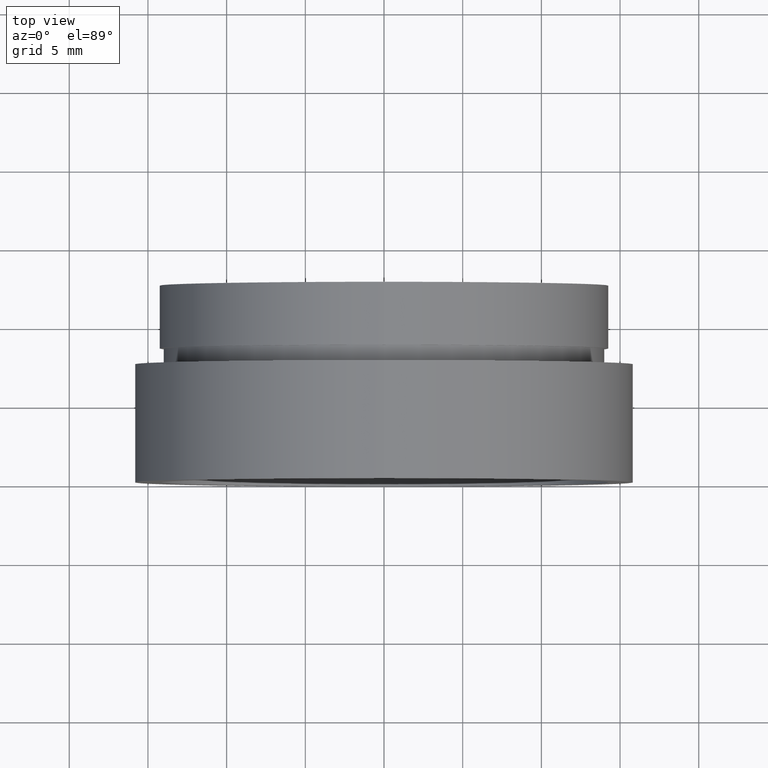
[diagram: clean part render]
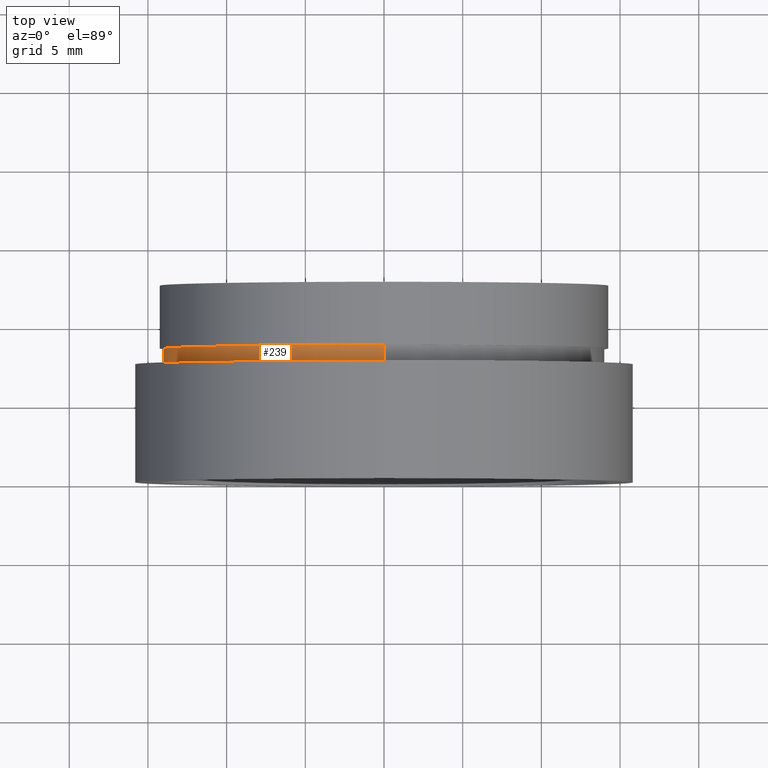
[diagram: same view with one face highlighted and labeled with its STEP entity id]
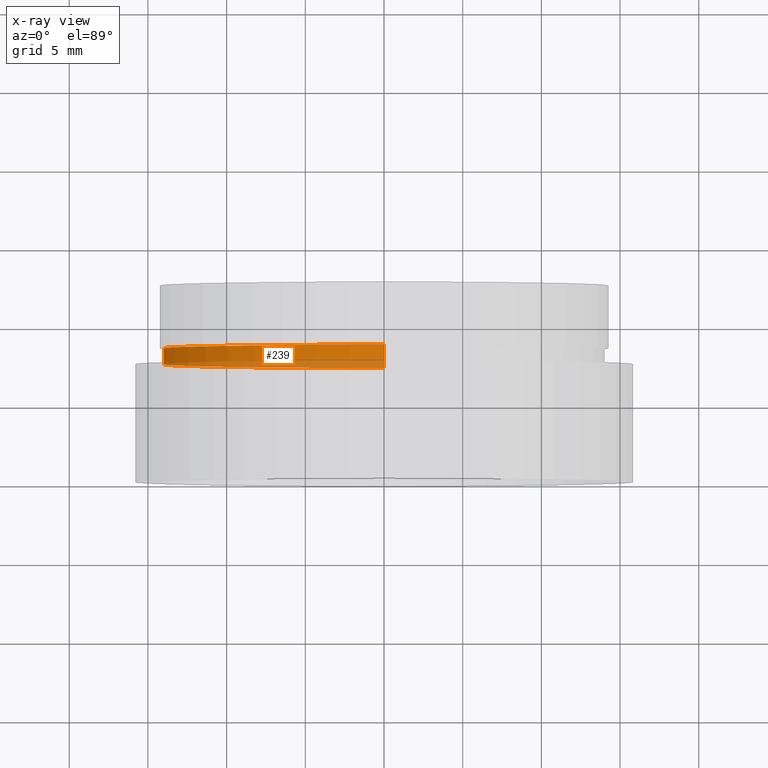
[diagram: x-ray of the same camera — body ghosted, the highlighted face saturated]
A machine part, top view. The second image highlights one B-rep face of the part: STEP entity #239.
The next image is the same camera in x-ray: the body ghosted, the highlighted face saturated — about 28% of this face is hidden behind the body in this view.
In plain terms, the highlighted cylindrical surface (partial cylindrical patch) has radius 14 mm, axis along (-0, 1, -0).
Its self-contained STEP definition (entity closure, byte-faithful):
#3 = AXIS2_PLACEMENT_3D ( 'NONE', #108, #254, #531 ) ;
#40 = DIRECTION ( 'NONE',  ( -0.0000000000000000000, 1.000000000000000000, -0.0000000000000000000 ) ) ;
#58 = VERTEX_POINT ( 'NONE', #225 ) ;
#77 = VECTOR ( 'NONE', #305, 1000.000000000000000 ) ;
#88 = CARTESIAN_POINT ( 'NONE',  ( 1.714505518806296600E-015, 7.499999999999978700, -14.00000000000001800 ) ) ;
#90 = CYLINDRICAL_SURFACE ( 'NONE', #365, 14.00000000000001800 ) ;
#93 = LINE ( 'NONE', #283, #199 ) ;
#96 = DIRECTION ( 'NONE',  ( -0.0000000000000000000, 1.000000000000000000, -0.0000000000000000000 ) ) ;
#108 = CARTESIAN_POINT ( 'NONE',  ( 0.0000000000000000000, 7.499999999999978700, 0.0000000000000000000 ) ) ;
#119 = CIRCLE ( 'NONE', #495, 14.00000000000001800 ) ;
#142 = CARTESIAN_POINT ( 'NONE',  ( 0.0000000000000000000, 161.3761669434274500, 0.0000000000000000000 ) ) ;
#145 = ORIENTED_EDGE ( 'NONE', *, *, #304, .F. ) ;
#185 = VERTEX_POINT ( 'NONE', #88 ) ;
#186 = CIRCLE ( 'NONE', #3, 14.00000000000001800 ) ;
#197 = CARTESIAN_POINT ( 'NONE',  ( 1.714505518806296600E-015, 161.3761669434274500, -14.00000000000001800 ) ) ;
#199 = VECTOR ( 'NONE', #40, 1000.000000000000000 ) ;
#209 = LINE ( 'NONE', #197, #77 ) ;
#225 = CARTESIAN_POINT ( 'NONE',  ( 0.0000000000000000000, 7.499999999999978700, 14.00000000000001800 ) ) ;
#232 = ORIENTED_EDGE ( 'NONE', *, *, #598, .T. ) ;
#239 = ADVANCED_FACE ( 'NONE', ( #397 ), #90, .T. ) ;
#254 = DIRECTION ( 'NONE',  ( -0.0000000000000000000, 1.000000000000000000, -0.0000000000000000000 ) ) ;
#283 = CARTESIAN_POINT ( 'NONE',  ( 0.0000000000000000000, 161.3761669434274500, 14.00000000000001800 ) ) ;
#304 = EDGE_CURVE ( 'NONE', #325, #441, #119, .T. ) ;
#305 = DIRECTION ( 'NONE',  ( -0.0000000000000000000, 1.000000000000000000, -0.0000000000000000000 ) ) ;
#325 = VERTEX_POINT ( 'NONE', #432 ) ;
#335 = EDGE_LOOP ( 'NONE', ( #483, #353, #232, #145 ) ) ;
#353 = ORIENTED_EDGE ( 'NONE', *, *, #459, .T. ) ;
#365 = AXIS2_PLACEMENT_3D ( 'NONE', #142, #524, #615 ) ;
#397 = FACE_OUTER_BOUND ( 'NONE', #335, .T. ) ;
#432 = CARTESIAN_POINT ( 'NONE',  ( 1.714505518806296600E-015, 8.499999999999980500, -14.00000000000001800 ) ) ;
#441 = VERTEX_POINT ( 'NONE', #482 ) ;
#459 = EDGE_CURVE ( 'NONE', #185, #58, #186, .T. ) ;
#482 = CARTESIAN_POINT ( 'NONE',  ( 0.0000000000000000000, 8.499999999999980500, 14.00000000000001800 ) ) ;
#483 = ORIENTED_EDGE ( 'NONE', *, *, #522, .F. ) ;
#495 = AXIS2_PLACEMENT_3D ( 'NONE', #530, #96, #579 ) ;
#522 = EDGE_CURVE ( 'NONE', #185, #325, #209, .T. ) ;
#524 = DIRECTION ( 'NONE',  ( -0.0000000000000000000, 1.000000000000000000, -0.0000000000000000000 ) ) ;
#530 = CARTESIAN_POINT ( 'NONE',  ( 0.0000000000000000000, 8.499999999999980500, 0.0000000000000000000 ) ) ;
#531 = DIRECTION ( 'NONE',  ( 0.0000000000000000000, 0.0000000000000000000, 1.000000000000000000 ) ) ;
#579 = DIRECTION ( 'NONE',  ( 0.0000000000000000000, 0.0000000000000000000, 1.000000000000000000 ) ) ;
#598 = EDGE_CURVE ( 'NONE', #58, #441, #93, .T. ) ;
#615 = DIRECTION ( 'NONE',  ( 0.0000000000000000000, 0.0000000000000000000, 1.000000000000000000 ) ) ;